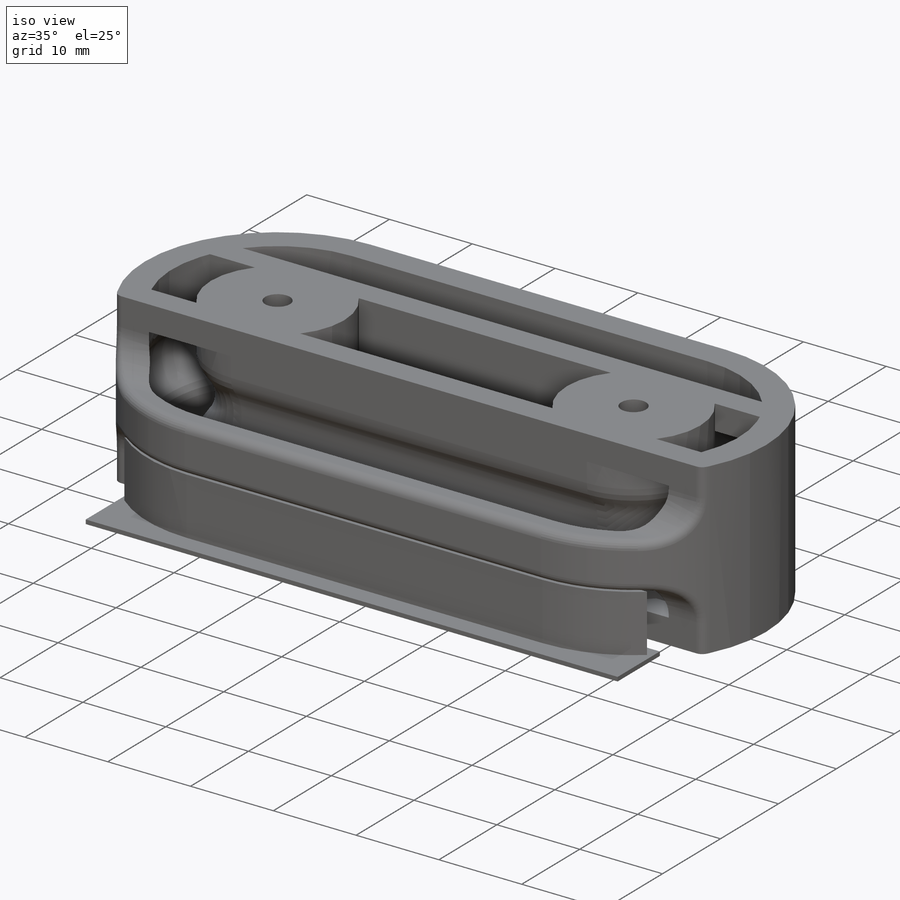
[diagram: iso view]
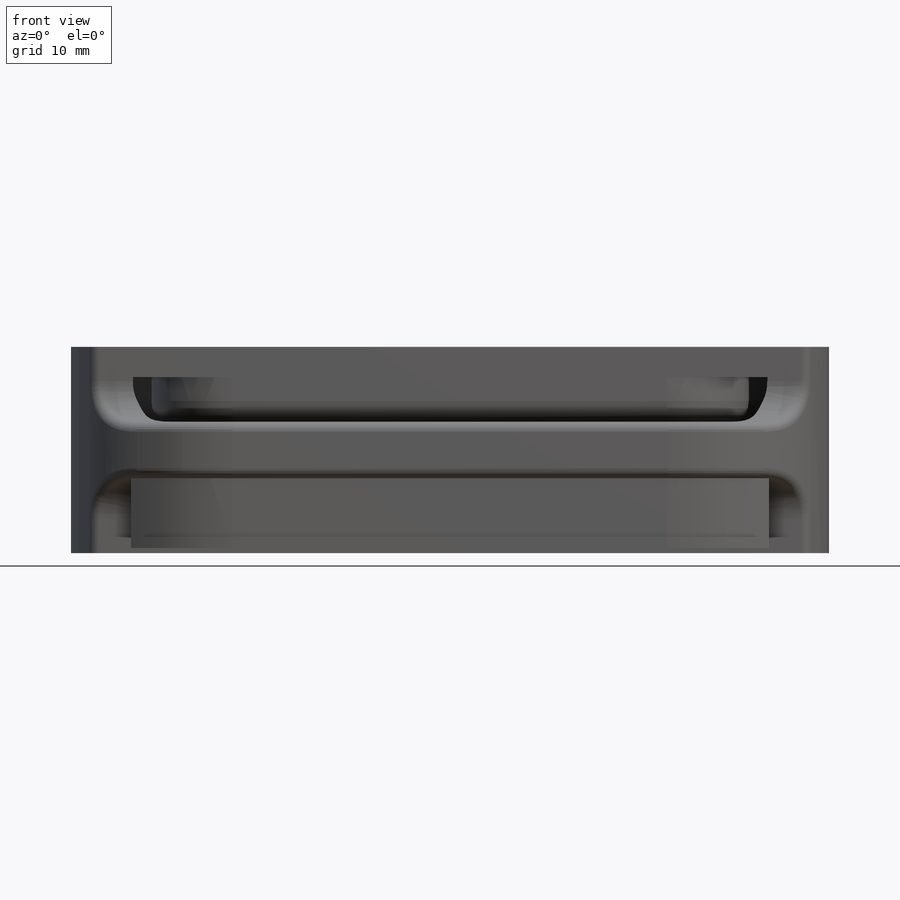
[diagram: front view]
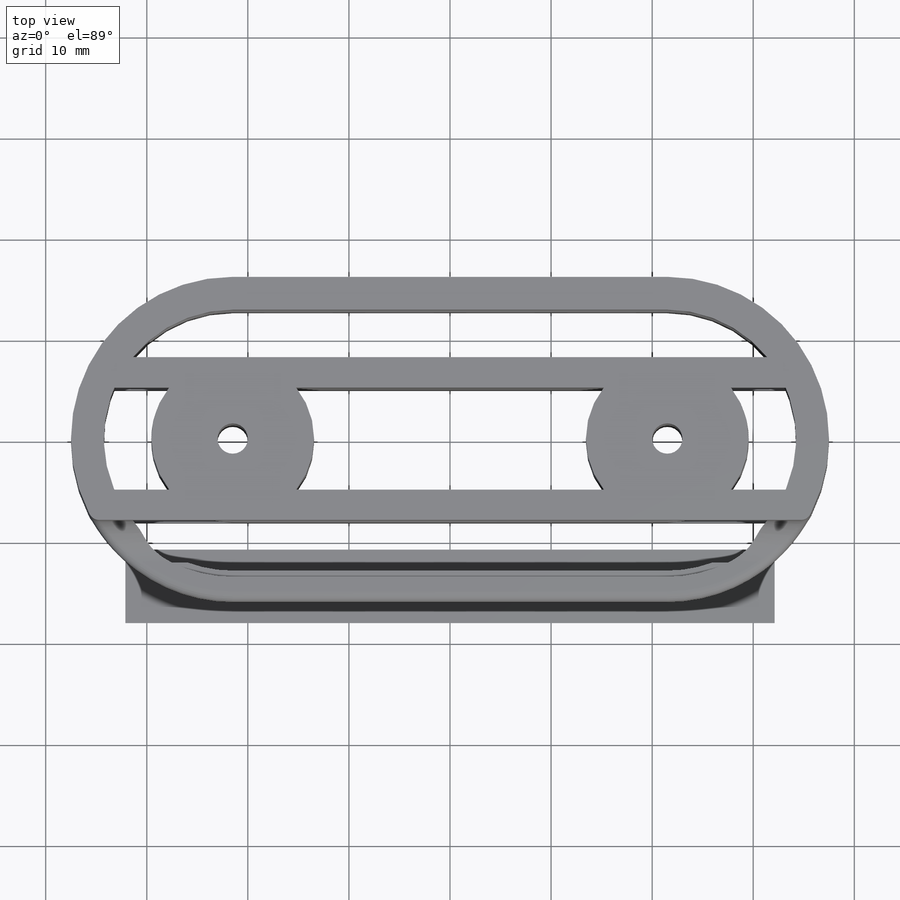
[diagram: top view]
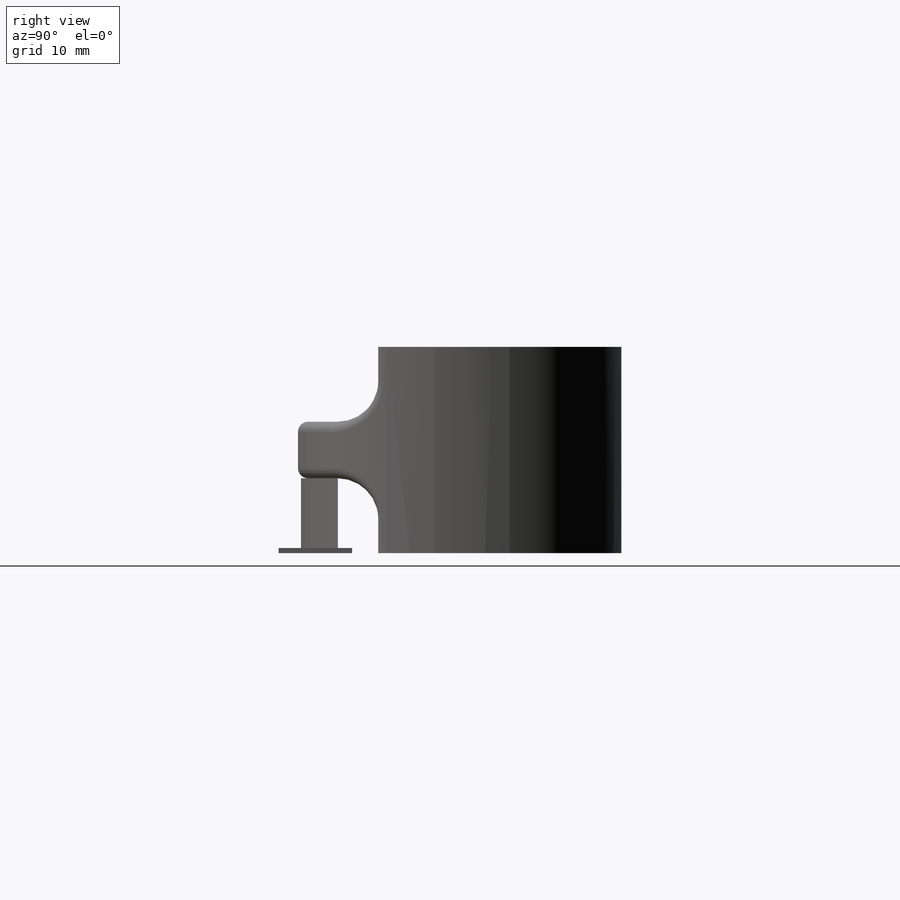
[diagram: right view]
SOLIDWORKS PART (.sldprt)
format: sldprt  version: not decoded by parser v0  size: 3,393,024 bytes
history: native  units: mm
features: sketch x10, extrude x4, cut_extrude x2, material x1, sweep x1, fillet x1, plane x1 (+13 scaffold rows collapsed)
feature tree (33):
  scaffold x13  (default folders/planes/origin — collapsed)
  material  "Material <not specified>"
  sketch  "Sketch-Body"  dims[c1.D1=6.9mm c1.D2=40.0mm c1.D3=32.0mm c1.D4=6.66mm c2.D2=43.0mm c2.D1=21.5mm c2.D4=43.0mm c2.D5=21.5mm]
  extrude  "Boss-Body"  Depth=10.2mm
  sketch  "Sketch14"  dims[D1=0.25mm]
  sketch  "Sketch-channel profile"  dims[c1.D1=7.9375mm c1.D5=~9.786008mm c1.D7=3.0mm c1.D2=6.0mm c1.D3=3.0mm c1.D4=5.6mm c2.D5=0.25mm c2.D6=6.4mm]
  sketch  "Sketch-channel path"
  sweep  "Cut-ball channel"
  sketch  "Sketch-slide cut"  dims[D2=4.0mm D1=3.5mm]
  cut_extrude  "Cut-rail access"  Depth=10mm
  sketch  "Sketch18"  dims[D1=3.0mm D2=3.0mm]
  extrude  "Boss-cross supports"  [1 undecoded]
  sketch  "Sketch19"  dims[D1=3.0mm]
  cut_extrude  "Cut-holes"  Depth=10mm
  fillet  "Fillet-rail"  Radius=1mm
  plane  "Plane-Contact Lines"
  sketch  "Sketch-Contact Lines"
  sketch  "Sketch20"  dims[D1=0.7mm]
  extrude  "Boss-Extrude1"  [1 undecoded]
  sketch  "Sketch21"
  extrude  "Boss-Extrude2"  Depth=0.5mm
decode coverage: 12 of 18 modeling features carry decoded parameters
note: ~ marks probable driven/reference dimensions
note: 2 parameter values undecoded
note: suppression state not decoded; provenance and decode notes live in map.json
